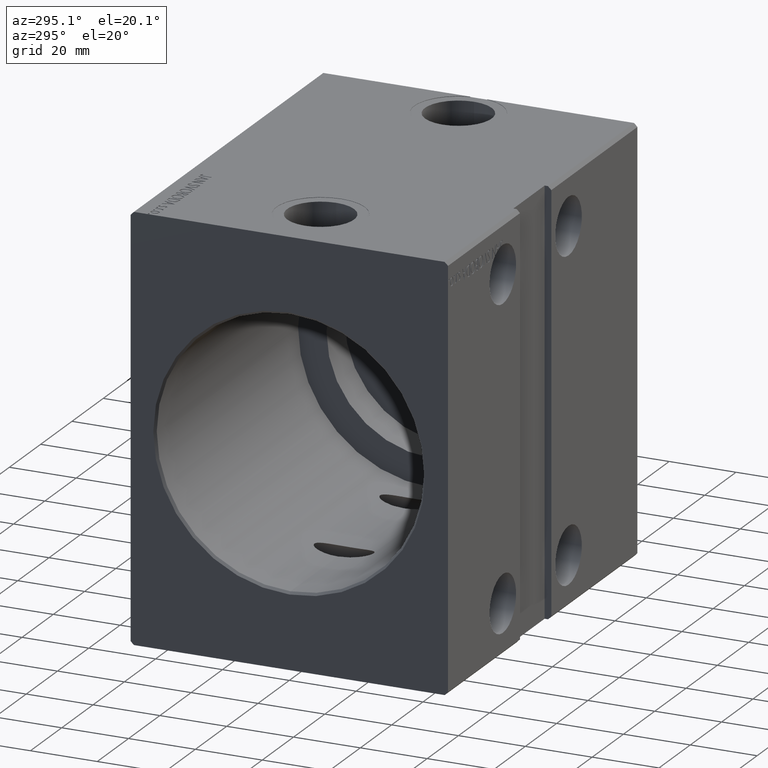
[diagram: clean part render]
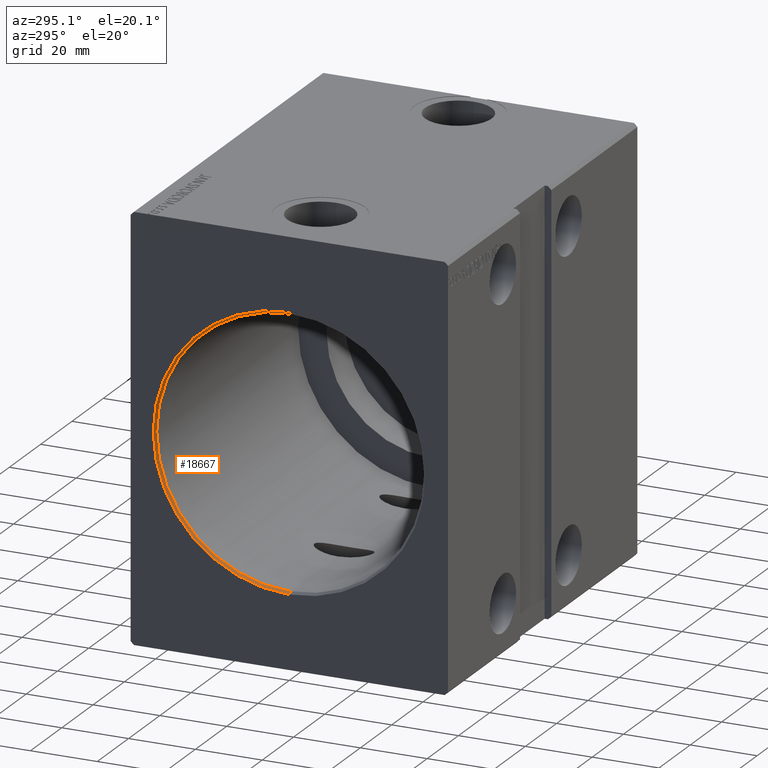
[diagram: same view with one face highlighted and labeled with its STEP entity id]
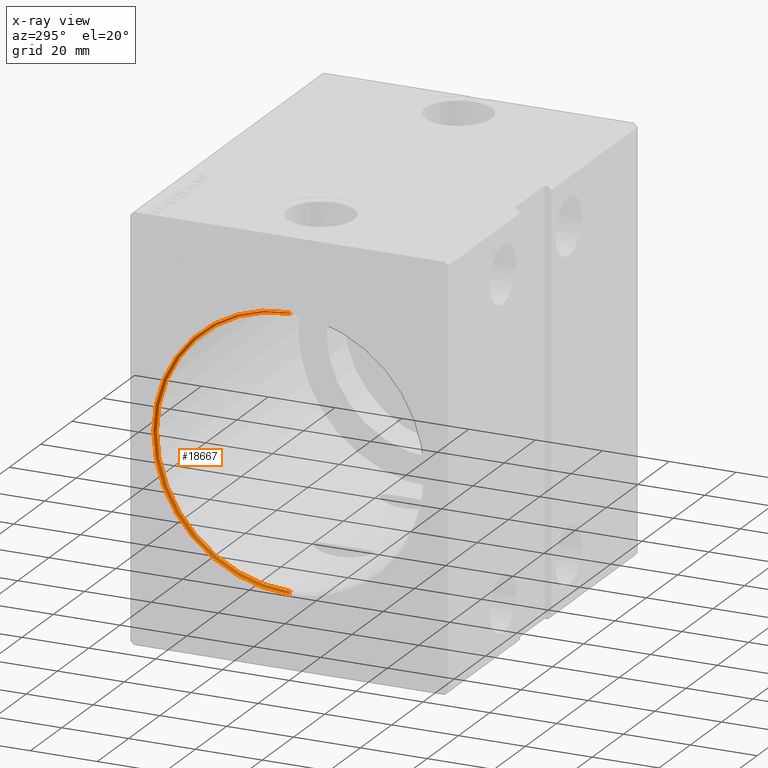
[diagram: x-ray of the same camera — body ghosted, the highlighted face saturated]
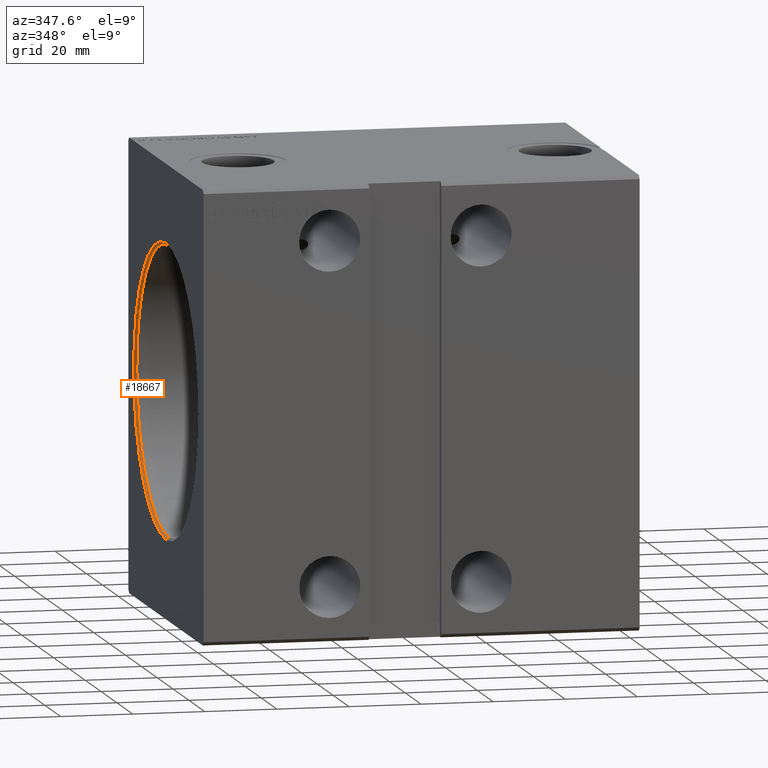
[diagram: same view with one face highlighted and labeled with its STEP entity id]
A machine part, auxiliary view. The second image highlights one B-rep face of the part: STEP entity #18667.
The next image is the same camera in x-ray: the body ghosted, the highlighted face saturated — about 0% of this face is hidden behind the body in this view.
A second angle (auxiliary view) of the same face is appended — the face is thin or edge-on in the first view.
In plain terms, the highlighted conical surface has half-angle 45 deg.
Its self-contained STEP definition (entity closure, byte-faithful):
#988 = CARTESIAN_POINT ( 'NONE',  ( 0.7000000000000616840, 4.898587196589413026E-15, -40.00000000000000000 ) ) ;
#1405 = ORIENTED_EDGE ( 'NONE', *, *, #27178, .F. ) ;
#2163 = VERTEX_POINT ( 'NONE', #26469 ) ;
#3058 = EDGE_CURVE ( 'NONE', #21246, #35544, #38176, .T. ) ;
#4579 = CARTESIAN_POINT ( 'NONE',  ( 0.7000000000000616840, 0.000000000000000000, 0.000000000000000000 ) ) ;
#6353 = DIRECTION ( 'NONE',  ( -1.000000000000000000, 0.000000000000000000, 0.000000000000000000 ) ) ;
#7314 = CARTESIAN_POINT ( 'NONE',  ( 0.7000000000000616840, 0.000000000000000000, 40.00000000000000000 ) ) ;
#9706 = DIRECTION ( 'NONE',  ( -0.7071067811865580088, 8.659560562354803436E-17, -0.7071067811865369146 ) ) ;
#14501 = CIRCLE ( 'NONE', #38463, 40.70000000000003837 ) ;
#14625 = CONICAL_SURFACE ( 'NONE', #21492, 40.00000000000000000, 0.7853981633974334020 ) ;
#17652 = DIRECTION ( 'NONE',  ( -1.000000000000000000, 0.000000000000000000, 0.000000000000000000 ) ) ;
#18084 = VECTOR ( 'NONE', #27681, 1000.000000000000114 ) ;
#18519 = CARTESIAN_POINT ( 'NONE',  ( 0.7000000000000616840, 0.000000000000000000, 40.00000000000000000 ) ) ;
#18667 = ADVANCED_FACE ( 'NONE', ( #19653 ), #14625, .F. ) ;
#18925 = DIRECTION ( 'NONE',  ( 0.000000000000000000, 0.000000000000000000, -1.000000000000000000 ) ) ;
#19653 = FACE_OUTER_BOUND ( 'NONE', #20747, .T. ) ;
#20747 = EDGE_LOOP ( 'NONE', ( #1405, #25610, #25874, #23434 ) ) ;
#21246 = VERTEX_POINT ( 'NONE', #18519 ) ;
#21492 = AXIS2_PLACEMENT_3D ( 'NONE', #25672, #6353, #22235 ) ;
#22235 = DIRECTION ( 'NONE',  ( 0.000000000000000000, 0.000000000000000000, 1.000000000000000000 ) ) ;
#23434 = ORIENTED_EDGE ( 'NONE', *, *, #34994, .F. ) ;
#24051 = DIRECTION ( 'NONE',  ( 1.000000000000000000, 0.000000000000000000, 0.000000000000000000 ) ) ;
#25610 = ORIENTED_EDGE ( 'NONE', *, *, #3058, .F. ) ;
#25664 = EDGE_CURVE ( 'NONE', #21246, #42023, #27051, .T. ) ;
#25672 = CARTESIAN_POINT ( 'NONE',  ( 0.7000000000000616840, 0.000000000000000000, 0.000000000000000000 ) ) ;
#25874 = ORIENTED_EDGE ( 'NONE', *, *, #25664, .T. ) ;
#26434 = CARTESIAN_POINT ( 'NONE',  ( 0.000000000000000000, 0.000000000000000000, 40.70000000000003837 ) ) ;
#26469 = CARTESIAN_POINT ( 'NONE',  ( 0.000000000000000000, 4.984312472529732047E-15, -40.70000000000003837 ) ) ;
#27051 = LINE ( 'NONE', #7314, #18084 ) ;
#27178 = EDGE_CURVE ( 'NONE', #35544, #2163, #29436, .T. ) ;
#27681 = DIRECTION ( 'NONE',  ( -0.7071067811865580088, 0.000000000000000000, 0.7071067811865369146 ) ) ;
#27695 = DIRECTION ( 'NONE',  ( 0.000000000000000000, 0.000000000000000000, -1.000000000000000000 ) ) ;
#29436 = LINE ( 'NONE', #36065, #29762 ) ;
#29762 = VECTOR ( 'NONE', #9706, 1000.000000000000114 ) ;
#34994 = EDGE_CURVE ( 'NONE', #2163, #42023, #14501, .T. ) ;
#35544 = VERTEX_POINT ( 'NONE', #988 ) ;
#36065 = CARTESIAN_POINT ( 'NONE',  ( 0.7000000000000616840, 4.898587196589413026E-15, -40.00000000000000000 ) ) ;
#37323 = CARTESIAN_POINT ( 'NONE',  ( 0.000000000000000000, 0.000000000000000000, 0.000000000000000000 ) ) ;
#38176 = CIRCLE ( 'NONE', #41572, 40.00000000000000000 ) ;
#38463 = AXIS2_PLACEMENT_3D ( 'NONE', #37323, #24051, #27695 ) ;
#41572 = AXIS2_PLACEMENT_3D ( 'NONE', #4579, #17652, #18925 ) ;
#42023 = VERTEX_POINT ( 'NONE', #26434 ) ;